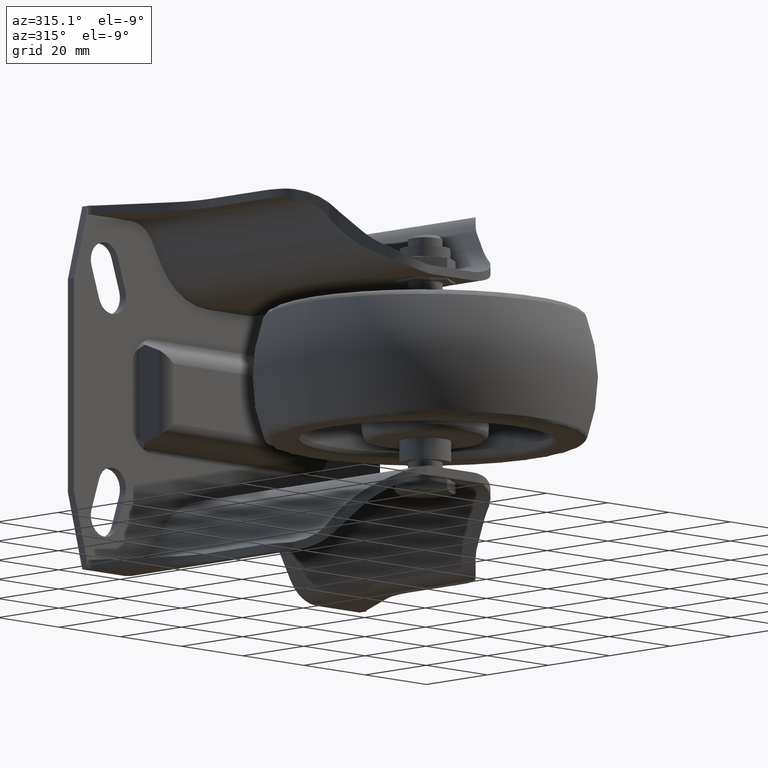
[diagram: clean part render]
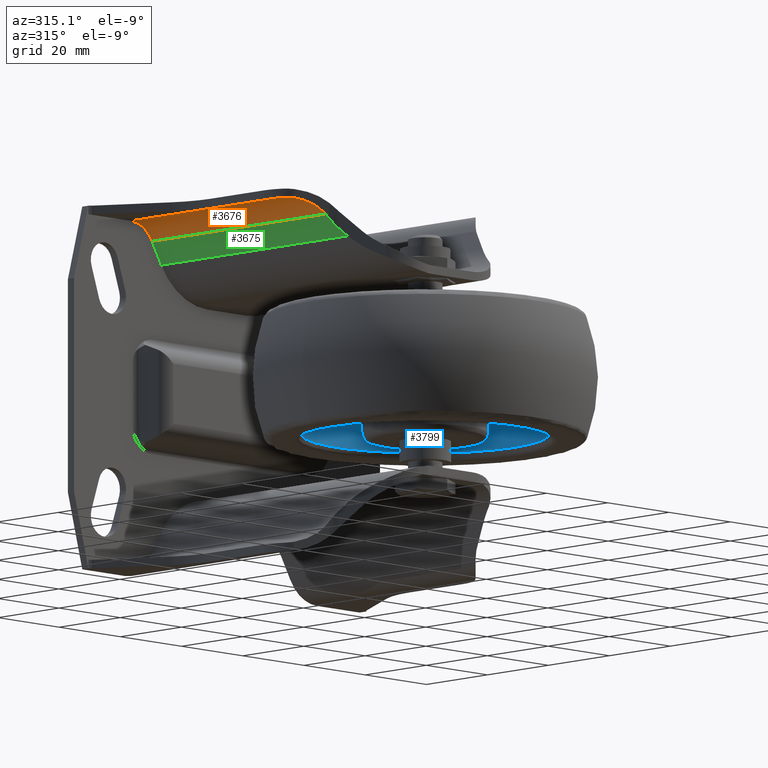
[diagram: same view with three faces highlighted in distinct colors, each labeled with its STEP entity id]
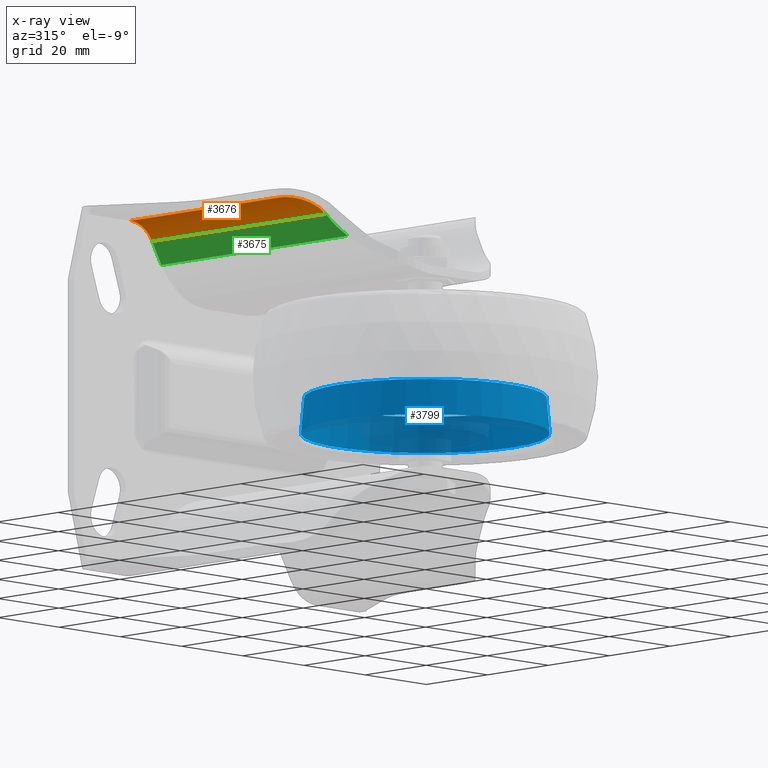
[diagram: x-ray of the same camera — body ghosted, the three highlighted faces saturated]
A machine part, auxiliary view with three faces highlighted in distinct colors.
The next image is the same camera in x-ray (body ghosted, the three faces saturated) — at least one of them is partly hidden behind the body in this view.
Their STEP definitions:

[orange] entity #3676 — the highlighted cylindrical surface (edge-blend (fillet) strip) has radius 8 mm, axis along (0, 1, 0).
#67=ELLIPSE('',#4108,11.3137084989848,8.00000000000001);
#99=B_SPLINE_CURVE_WITH_KNOTS('',3,(#6345,#6346,#6347,#6348),
 .UNSPECIFIED.,.F.,.F.,(4,4),(-0.76216396216336,-0.454801659483847),
 .UNSPECIFIED.);
#365=LINE('',#6339,#625);
#367=LINE('',#6350,#627);
#625=VECTOR('',#4843,1000.);
#627=VECTOR('',#4849,1000.);
#799=CYLINDRICAL_SURFACE('',#4107,8.00000000000001);
#938=FACE_OUTER_BOUND('',#1169,.T.);
#1169=EDGE_LOOP('',(#2855,#2856,#2857,#2858,#2859));
#1390=CIRCLE('',#4109,8.00000000000001);
#1752=VERTEX_POINT('',#6336);
#1753=VERTEX_POINT('',#6338);
#1754=VERTEX_POINT('',#6342);
#1755=VERTEX_POINT('',#6344);
#1756=VERTEX_POINT('',#6349);
#2170=EDGE_CURVE('',#1752,#1753,#365,.T.);
#2172=EDGE_CURVE('',#1754,#1752,#67,.F.);
#2173=EDGE_CURVE('',#1754,#1755,#99,.T.);
#2174=EDGE_CURVE('',#1755,#1756,#367,.T.);
#2175=EDGE_CURVE('',#1756,#1753,#1390,.T.);
#2855=ORIENTED_EDGE('',*,*,#2172,.F.);
#2856=ORIENTED_EDGE('',*,*,#2173,.T.);
#2857=ORIENTED_EDGE('',*,*,#2174,.T.);
#2858=ORIENTED_EDGE('',*,*,#2175,.T.);
#2859=ORIENTED_EDGE('',*,*,#2170,.F.);
#3676=ADVANCED_FACE('',(#938),#799,.F.);
#4107=AXIS2_PLACEMENT_3D('',#6341,#4845,#4846);
#4108=AXIS2_PLACEMENT_3D('',#6343,#4847,#4848);
#4109=AXIS2_PLACEMENT_3D('',#6351,#4850,#4851);
#4843=DIRECTION('',(0.,1.,0.));
#4845=DIRECTION('center_axis',(0.,1.,0.));
#4846=DIRECTION('ref_axis',(0.,0.,1.));
#4847=DIRECTION('center_axis',(-0.707106781186548,-0.707106781186547,0.));
#4848=DIRECTION('ref_axis',(-0.707106781186547,0.707106781186548,0.));
#4849=DIRECTION('',(0.,1.,0.));
#4850=DIRECTION('center_axis',(0.,1.,0.));
#4851=DIRECTION('ref_axis',(0.,0.,1.));
#6336=CARTESIAN_POINT('',(-24.487604307034,8.07606157515392,36.5));
#6338=CARTESIAN_POINT('',(-24.487604307034,65.,36.5));
#6339=CARTESIAN_POINT('',(-24.487604307034,-40.,36.5));
#6341=CARTESIAN_POINT('Origin',(-31.4158075373095,-40.,32.5));
#6342=CARTESIAN_POINT('',(-29.5710678118655,13.1595250799854,40.2844033390729));
#6343=CARTESIAN_POINT('Origin',(-31.4158075373095,15.0042648054294,32.5));
#6344=CARTESIAN_POINT('',(-31.4158075373095,15.7019754474585,40.5));
#6345=CARTESIAN_POINT('Ctrl Pts',(-29.5710678118655,13.1595250799854,40.2844033390729));
#6346=CARTESIAN_POINT('Ctrl Pts',(-30.2932502081584,13.8817074762783,40.4555453646628));
#6347=CARTESIAN_POINT('Ctrl Pts',(-30.9318436950525,14.7491618071889,40.5));
#6348=CARTESIAN_POINT('Ctrl Pts',(-31.4158075373095,15.7019754474585,40.5));
#6349=CARTESIAN_POINT('',(-31.4158075373095,65.,40.5));
#6350=CARTESIAN_POINT('',(-31.4158075373095,-40.,40.5));
#6351=CARTESIAN_POINT('Origin',(-31.4158075373095,65.,32.5));

[blue] entity #3799 — the highlighted conical surface has half-angle 5 deg.
#515=LINE('',#6925,#775);
#775=VECTOR('',#5445,28.8402729518514);
#1061=FACE_OUTER_BOUND('',#1305,.T.);
#1305=EDGE_LOOP('',(#3513,#3514,#3515,#3516,#3517,#3518));
#1480=CIRCLE('',#4328,28.8402729518514);
#1481=CIRCLE('',#4329,28.8402729518514);
#1482=CIRCLE('',#4331,28.107489038046);
#1483=CIRCLE('',#4332,28.107489038046);
#1884=VERTEX_POINT('',#6915);
#1885=VERTEX_POINT('',#6917);
#1886=VERTEX_POINT('',#6921);
#1887=VERTEX_POINT('',#6922);
#2428=EDGE_CURVE('',#1884,#1885,#1480,.T.);
#2429=EDGE_CURVE('',#1885,#1884,#1481,.T.);
#2430=EDGE_CURVE('',#1886,#1887,#1482,.T.);
#2431=EDGE_CURVE('',#1887,#1886,#1483,.T.);
#2432=EDGE_CURVE('',#1886,#1885,#515,.T.);
#3513=ORIENTED_EDGE('',*,*,#2430,.T.);
#3514=ORIENTED_EDGE('',*,*,#2431,.T.);
#3515=ORIENTED_EDGE('',*,*,#2432,.T.);
#3516=ORIENTED_EDGE('',*,*,#2428,.F.);
#3517=ORIENTED_EDGE('',*,*,#2429,.F.);
#3518=ORIENTED_EDGE('',*,*,#2432,.F.);
#3586=CONICAL_SURFACE('',#4330,28.8402729518514,0.0872664625997159);
#3799=ADVANCED_FACE('',(#1061),#3586,.F.);
#4328=AXIS2_PLACEMENT_3D('',#6918,#5435,#5436);
#4329=AXIS2_PLACEMENT_3D('',#6919,#5437,#5438);
#4330=AXIS2_PLACEMENT_3D('',#6920,#5439,#5440);
#4331=AXIS2_PLACEMENT_3D('',#6923,#5441,#5442);
#4332=AXIS2_PLACEMENT_3D('',#6924,#5443,#5444);
#5435=DIRECTION('center_axis',(0.,0.,1.));
#5436=DIRECTION('ref_axis',(1.,0.,0.));
#5437=DIRECTION('center_axis',(0.,0.,1.));
#5438=DIRECTION('ref_axis',(1.,0.,0.));
#5439=DIRECTION('center_axis',(0.,0.,-1.));
#5440=DIRECTION('ref_axis',(-1.,0.,0.));
#5441=DIRECTION('center_axis',(0.,0.,1.));
#5442=DIRECTION('ref_axis',(1.,0.,0.));
#5443=DIRECTION('center_axis',(0.,0.,1.));
#5444=DIRECTION('ref_axis',(1.,0.,0.));
#5445=DIRECTION('',(0.0871557427476576,-1.06735001383229E-17,-0.996194698091746));
#6915=CARTESIAN_POINT('',(-28.8402729518514,-3.53191479570208E-15,-13.1743114854953));
#6917=CARTESIAN_POINT('',(28.8402729518514,0.,-13.1743114854953));
#6918=CARTESIAN_POINT('Origin',(0.,0.,-13.1743114854953));
#6919=CARTESIAN_POINT('Origin',(0.,0.,-13.1743114854953));
#6920=CARTESIAN_POINT('Origin',(0.,0.,-13.1743114854953));
#6921=CARTESIAN_POINT('',(28.107489038046,0.,-4.79855302407849));
#6922=CARTESIAN_POINT('',(-28.107489038046,-3.44217464825124E-15,-4.79855302407849));
#6923=CARTESIAN_POINT('Origin',(0.,0.,-4.79855302407849));
#6924=CARTESIAN_POINT('Origin',(0.,0.,-4.79855302407849));
#6925=CARTESIAN_POINT('',(28.8402729518514,-3.53191479570208E-15,-13.1743114854953));

[green] entity #3675 — the highlighted planar face has unit normal (-0.866, 0, -0.5).
#66=ELLIPSE('',#4106,20.0000000000001,10.0000000000001);
#205=PLANE('',#4105);
#362=LINE('',#6329,#622);
#363=LINE('',#6333,#623);
#364=LINE('',#6337,#624);
#365=LINE('',#6339,#625);
#366=LINE('',#6340,#626);
#622=VECTOR('',#4834,1000.);
#623=VECTOR('',#4839,1000.);
#624=VECTOR('',#4842,1000.);
#625=VECTOR('',#4843,1000.);
#626=VECTOR('',#4844,1000.);
#937=FACE_OUTER_BOUND('',#1168,.T.);
#1168=EDGE_LOOP('',(#2849,#2850,#2851,#2852,#2853,#2854));
#1748=VERTEX_POINT('',#6326);
#1749=VERTEX_POINT('',#6328);
#1750=VERTEX_POINT('',#6332);
#1751=VERTEX_POINT('',#6334);
#1752=VERTEX_POINT('',#6336);
#1753=VERTEX_POINT('',#6338);
#2165=EDGE_CURVE('',#1748,#1749,#362,.T.);
#2167=EDGE_CURVE('',#1748,#1750,#363,.T.);
#2168=EDGE_CURVE('',#1750,#1751,#66,.F.);
#2169=EDGE_CURVE('',#1751,#1752,#364,.T.);
#2170=EDGE_CURVE('',#1752,#1753,#365,.T.);
#2171=EDGE_CURVE('',#1749,#1753,#366,.T.);
#2849=ORIENTED_EDGE('',*,*,#2165,.F.);
#2850=ORIENTED_EDGE('',*,*,#2167,.T.);
#2851=ORIENTED_EDGE('',*,*,#2168,.T.);
#2852=ORIENTED_EDGE('',*,*,#2169,.T.);
#2853=ORIENTED_EDGE('',*,*,#2170,.T.);
#2854=ORIENTED_EDGE('',*,*,#2171,.F.);
#3675=ADVANCED_FACE('',(#937),#205,.T.);
#4105=AXIS2_PLACEMENT_3D('',#6331,#4837,#4838);
#4106=AXIS2_PLACEMENT_3D('',#6335,#4840,#4841);
#4834=DIRECTION('',(0.,1.,0.));
#4837=DIRECTION('center_axis',(-0.866025403784438,0.,-0.500000000000002));
#4838=DIRECTION('ref_axis',(-0.500000000000002,0.,0.866025403784438));
#4839=DIRECTION('',(-0.377964473009228,0.654653670707978,0.654653670707976));
#4840=DIRECTION('center_axis',(-0.866025403784438,0.,-0.500000000000002));
#4841=DIRECTION('ref_axis',(0.500000000000002,0.,-0.866025403784438));
#4842=DIRECTION('',(-0.447213595499959,0.447213595499959,0.774596669241482));
#4843=DIRECTION('',(0.,1.,0.));
#4844=DIRECTION('',(-0.500000000000002,0.,0.866025403784438));
#6326=CARTESIAN_POINT('',(-21.4565153937885,3.91506350946108,31.25));
#6328=CARTESIAN_POINT('',(-21.4565153937885,65.,31.25));
#6329=CARTESIAN_POINT('',(-21.4565153937885,-40.,31.25));
#6331=CARTESIAN_POINT('Origin',(-21.4565153937885,-40.,31.25));
#6332=CARTESIAN_POINT('',(-22.341737512063,5.44831319429635,32.7832496848352));
#6333=CARTESIAN_POINT('',(-10.5903552200741,-14.9056779945937,12.4292584959453));
#6334=CARTESIAN_POINT('',(-23.9309237380419,7.51938100616182,35.5358009709193));
#6335=CARTESIAN_POINT('Origin',(-31.0019915499075,0.448313194296313,47.7832496848353));
#6336=CARTESIAN_POINT('',(-24.487604307034,8.07606157515392,36.5));
#6337=CARTESIAN_POINT('',(-12.4475208614067,-3.96402187047337,15.6459637448047));
#6338=CARTESIAN_POINT('',(-24.487604307034,65.,36.5));
#6339=CARTESIAN_POINT('',(-24.487604307034,-40.,36.5));
#6340=CARTESIAN_POINT('',(-24.487604307034,65.,36.5));